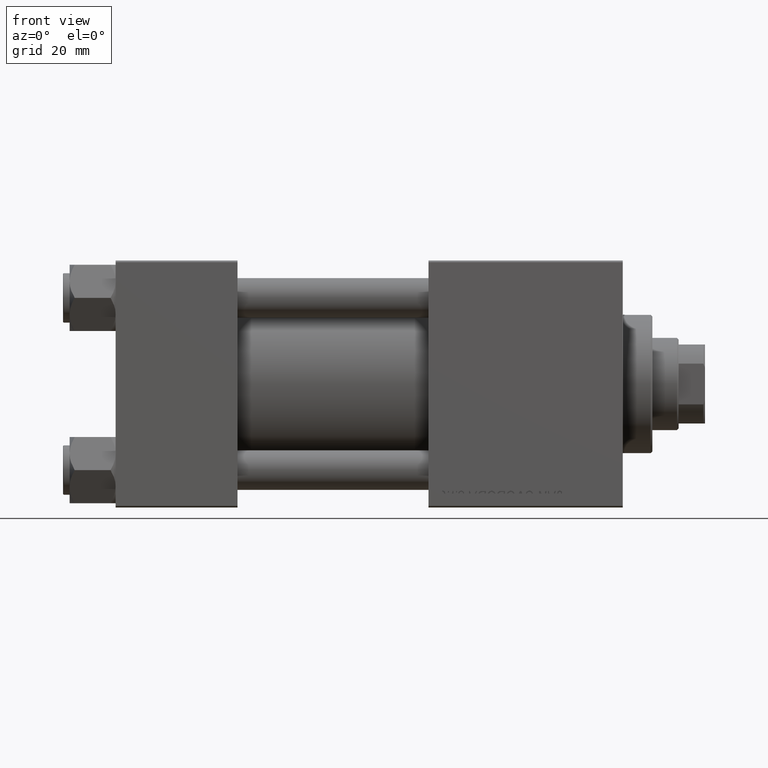
[diagram: clean part render]
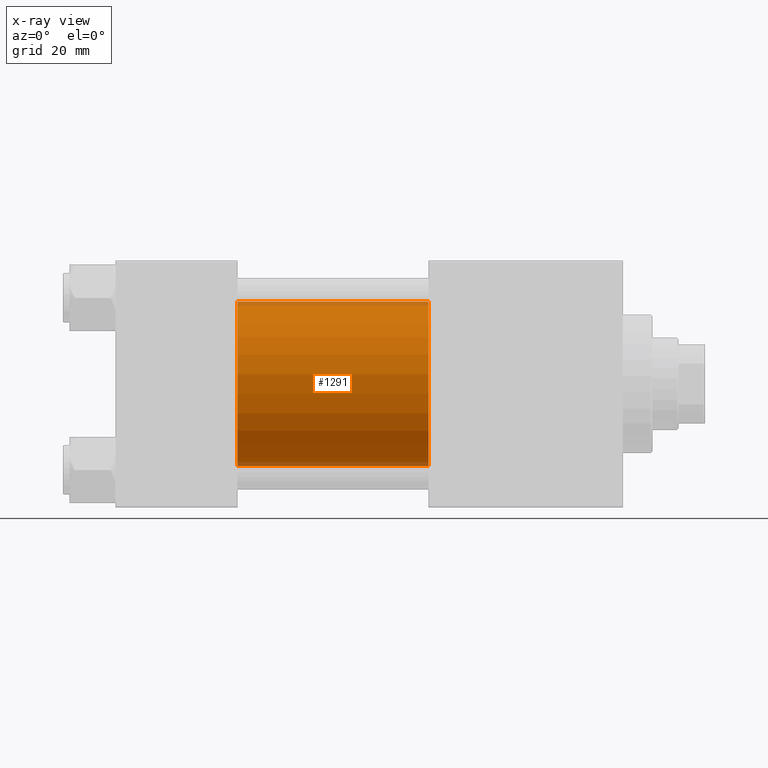
[diagram: x-ray — body ghosted, one internal face saturated and labeled with its STEP entity id]
A machine part, front view, then the same camera in x-ray: the body is ghosted and one INTERNAL B-rep face — a face not visible from any outside direction — is saturated and labeled: STEP entity #1291.
In plain terms, the highlighted cylindrical surface (partial cylindrical patch) has radius 25 mm, axis along (-1, -0, -0).
Its self-contained STEP definition (entity closure, byte-faithful):
#1291 = ADVANCED_FACE ( 'NONE', ( #13837 ), #48592, .F. ) ;
#3245 = LINE ( 'NONE', #15449, #34893 ) ;
#5950 = DIRECTION ( 'NONE',  ( -1.000000000000000000, -0.000000000000000000, -0.000000000000000000 ) ) ;
#6307 = CARTESIAN_POINT ( 'NONE',  ( 95.00000000000000000, -2.602085213965210642E-15, 25.00000000000000000 ) ) ;
#6653 = EDGE_LOOP ( 'NONE', ( #50236, #29295, #11122, #13684 ) ) ;
#8919 = VECTOR ( 'NONE', #16980, 1000.000000000000000 ) ;
#9113 = LINE ( 'NONE', #6307, #8919 ) ;
#10512 = DIRECTION ( 'NONE',  ( 0.000000000000000000, 0.000000000000000000, 1.000000000000000000 ) ) ;
#11122 = ORIENTED_EDGE ( 'NONE', *, *, #26230, .F. ) ;
#13467 = CARTESIAN_POINT ( 'NONE',  ( 95.00000000000000000, -2.602085213965210642E-15, 0.000000000000000000 ) ) ;
#13684 = ORIENTED_EDGE ( 'NONE', *, *, #16257, .F. ) ;
#13837 = FACE_OUTER_BOUND ( 'NONE', #6653, .T. ) ;
#14068 = DIRECTION ( 'NONE',  ( 0.000000000000000000, 0.000000000000000000, -1.000000000000000000 ) ) ;
#15449 = CARTESIAN_POINT ( 'NONE',  ( 95.00000000000000000, 4.595317839031718093E-16, -25.00000000000000000 ) ) ;
#16257 = EDGE_CURVE ( 'NONE', #21480, #29781, #9113, .T. ) ;
#16321 = VERTEX_POINT ( 'NONE', #29170 ) ;
#16980 = DIRECTION ( 'NONE',  ( -1.000000000000000000, -0.000000000000000000, -0.000000000000000000 ) ) ;
#17606 = DIRECTION ( 'NONE',  ( 1.000000000000000000, 0.000000000000000000, 0.000000000000000000 ) ) ;
#18362 = CARTESIAN_POINT ( 'NONE',  ( 37.00000000000000000, -2.602085213965210642E-15, 0.000000000000000000 ) ) ;
#21480 = VERTEX_POINT ( 'NONE', #32535 ) ;
#21571 = AXIS2_PLACEMENT_3D ( 'NONE', #29310, #5950, #10512 ) ;
#21592 = DIRECTION ( 'NONE',  ( 0.000000000000000000, 0.000000000000000000, -1.000000000000000000 ) ) ;
#24389 = DIRECTION ( 'NONE',  ( 1.000000000000000000, 0.000000000000000000, 0.000000000000000000 ) ) ;
#26230 = EDGE_CURVE ( 'NONE', #29781, #33271, #29997, .T. ) ;
#29170 = CARTESIAN_POINT ( 'NONE',  ( 95.00000000000000000, 4.595317839031718093E-16, -25.00000000000000000 ) ) ;
#29295 = ORIENTED_EDGE ( 'NONE', *, *, #30805, .T. ) ;
#29310 = CARTESIAN_POINT ( 'NONE',  ( 95.00000000000000000, -2.602085213965210642E-15, 0.000000000000000000 ) ) ;
#29781 = VERTEX_POINT ( 'NONE', #40373 ) ;
#29997 = CIRCLE ( 'NONE', #39739, 25.00000000000000000 ) ;
#30805 = EDGE_CURVE ( 'NONE', #16321, #33271, #3245, .T. ) ;
#32535 = CARTESIAN_POINT ( 'NONE',  ( 95.00000000000000000, -2.602085213965210642E-15, 25.00000000000000000 ) ) ;
#33271 = VERTEX_POINT ( 'NONE', #47626 ) ;
#34893 = VECTOR ( 'NONE', #42345, 1000.000000000000000 ) ;
#39739 = AXIS2_PLACEMENT_3D ( 'NONE', #18362, #17606, #14068 ) ;
#40373 = CARTESIAN_POINT ( 'NONE',  ( 37.00000000000000000, -2.602085213965210642E-15, 25.00000000000000000 ) ) ;
#42345 = DIRECTION ( 'NONE',  ( -1.000000000000000000, -0.000000000000000000, -0.000000000000000000 ) ) ;
#43050 = EDGE_CURVE ( 'NONE', #21480, #16321, #44069, .T. ) ;
#44069 = CIRCLE ( 'NONE', #44902, 25.00000000000000000 ) ;
#44902 = AXIS2_PLACEMENT_3D ( 'NONE', #13467, #24389, #21592 ) ;
#47626 = CARTESIAN_POINT ( 'NONE',  ( 37.00000000000000000, 4.595317839031718093E-16, -25.00000000000000000 ) ) ;
#48592 = CYLINDRICAL_SURFACE ( 'NONE', #21571, 25.00000000000000000 ) ;
#50236 = ORIENTED_EDGE ( 'NONE', *, *, #43050, .T. ) ;